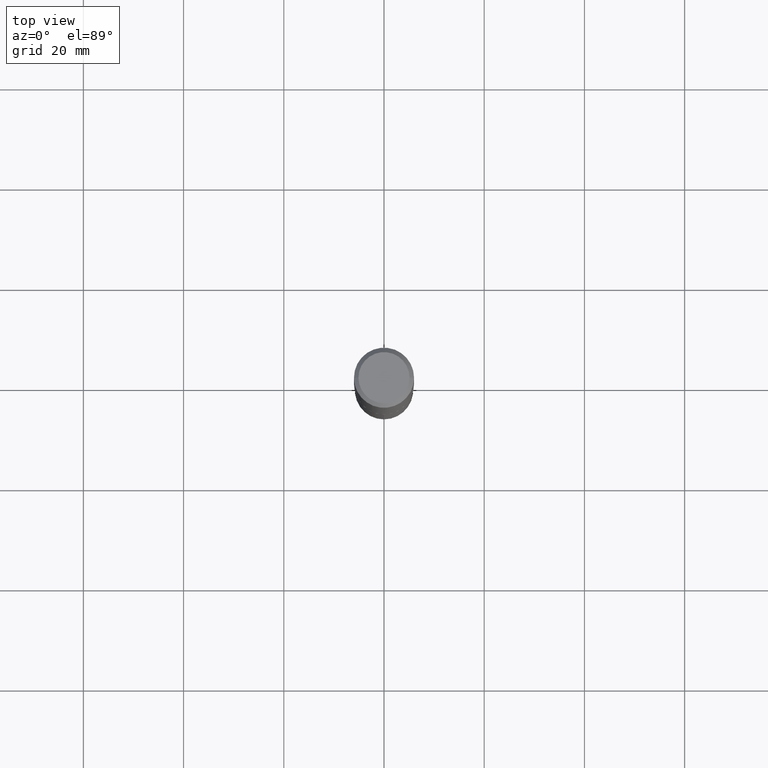
[diagram: clean part render]
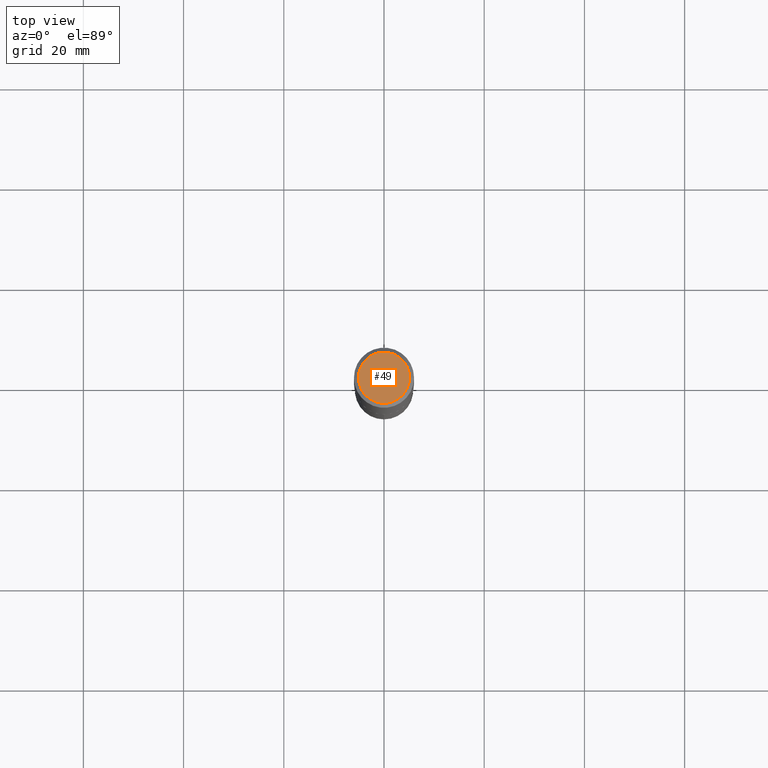
[diagram: same view with one face highlighted and labeled with its STEP entity id]
A machine part, top view. The second image highlights one B-rep face of the part: STEP entity #49.
In plain terms, the highlighted planar face has unit normal (0, -0, -1).
Its self-contained STEP definition (entity closure, byte-faithful):
#25 = AXIS2_PLACEMENT_3D ( 'NONE', #106, #254, #26 ) ;
#26 = DIRECTION ( 'NONE',  ( 1.000000000000000000, -6.982962677686266711E-15, 4.876140833081945105E-29 ) ) ;
#49 = ADVANCED_FACE ( 'NONE', ( #65 ), #325, .F. ) ;
#65 = FACE_OUTER_BOUND ( 'NONE', #425, .T. ) ;
#84 = DIRECTION ( 'NONE',  ( -2.445468806185136597E-29, 3.491481338843145583E-15, 1.000000000000000000 ) ) ;
#97 = ORIENTED_EDGE ( 'NONE', *, *, #378, .T. ) ;
#99 = CARTESIAN_POINT ( 'NONE',  ( -5.008488096090115757E-47, 7.150793614331959538E-33, 2.048068690724057264E-18 ) ) ;
#106 = CARTESIAN_POINT ( 'NONE',  ( -1.001697619218023151E-46, 1.430158722866391908E-32, 4.096137381448114529E-18 ) ) ;
#110 = DIRECTION ( 'NONE',  ( -1.000000000000000000, 6.982962677686265922E-15, -4.876176775795935793E-29 ) ) ;
#123 = ORIENTED_EDGE ( 'NONE', *, *, #156, .T. ) ;
#138 = CIRCLE ( 'NONE', #332, 0.2007700000000000040 ) ;
#156 = EDGE_CURVE ( 'NONE', #204, #173, #138, .T. ) ;
#173 = VERTEX_POINT ( 'NONE', #303 ) ;
#186 = DIRECTION ( 'NONE',  ( 2.438088387897960049E-29, -3.491481338843145188E-15, -1.000000000000000000 ) ) ;
#198 = CARTESIAN_POINT ( 'NONE',  ( -1.001697619218023151E-46, 1.430158722866391908E-32, 4.096137381448114529E-18 ) ) ;
#204 = VERTEX_POINT ( 'NONE', #307 ) ;
#222 = CIRCLE ( 'NONE', #25, 0.2007700000000000040 ) ;
#254 = DIRECTION ( 'NONE',  ( -2.445468806185136597E-29, 3.491481338843145583E-15, 1.000000000000000000 ) ) ;
#303 = CARTESIAN_POINT ( 'NONE',  ( -0.2007700000000000040, 1.463821008716676943E-15, 4.096137381438094301E-18 ) ) ;
#307 = CARTESIAN_POINT ( 'NONE',  ( 0.2007700000000000040, -1.560767496960719869E-15, 4.096137381458473721E-18 ) ) ;
#325 = PLANE ( 'NONE',  #464 ) ;
#332 = AXIS2_PLACEMENT_3D ( 'NONE', #198, #84, #406 ) ;
#378 = EDGE_CURVE ( 'NONE', #173, #204, #222, .T. ) ;
#406 = DIRECTION ( 'NONE',  ( 1.000000000000000000, -6.982962677686266711E-15, 4.876140833081945105E-29 ) ) ;
#425 = EDGE_LOOP ( 'NONE', ( #97, #123 ) ) ;
#464 = AXIS2_PLACEMENT_3D ( 'NONE', #99, #186, #110 ) ;